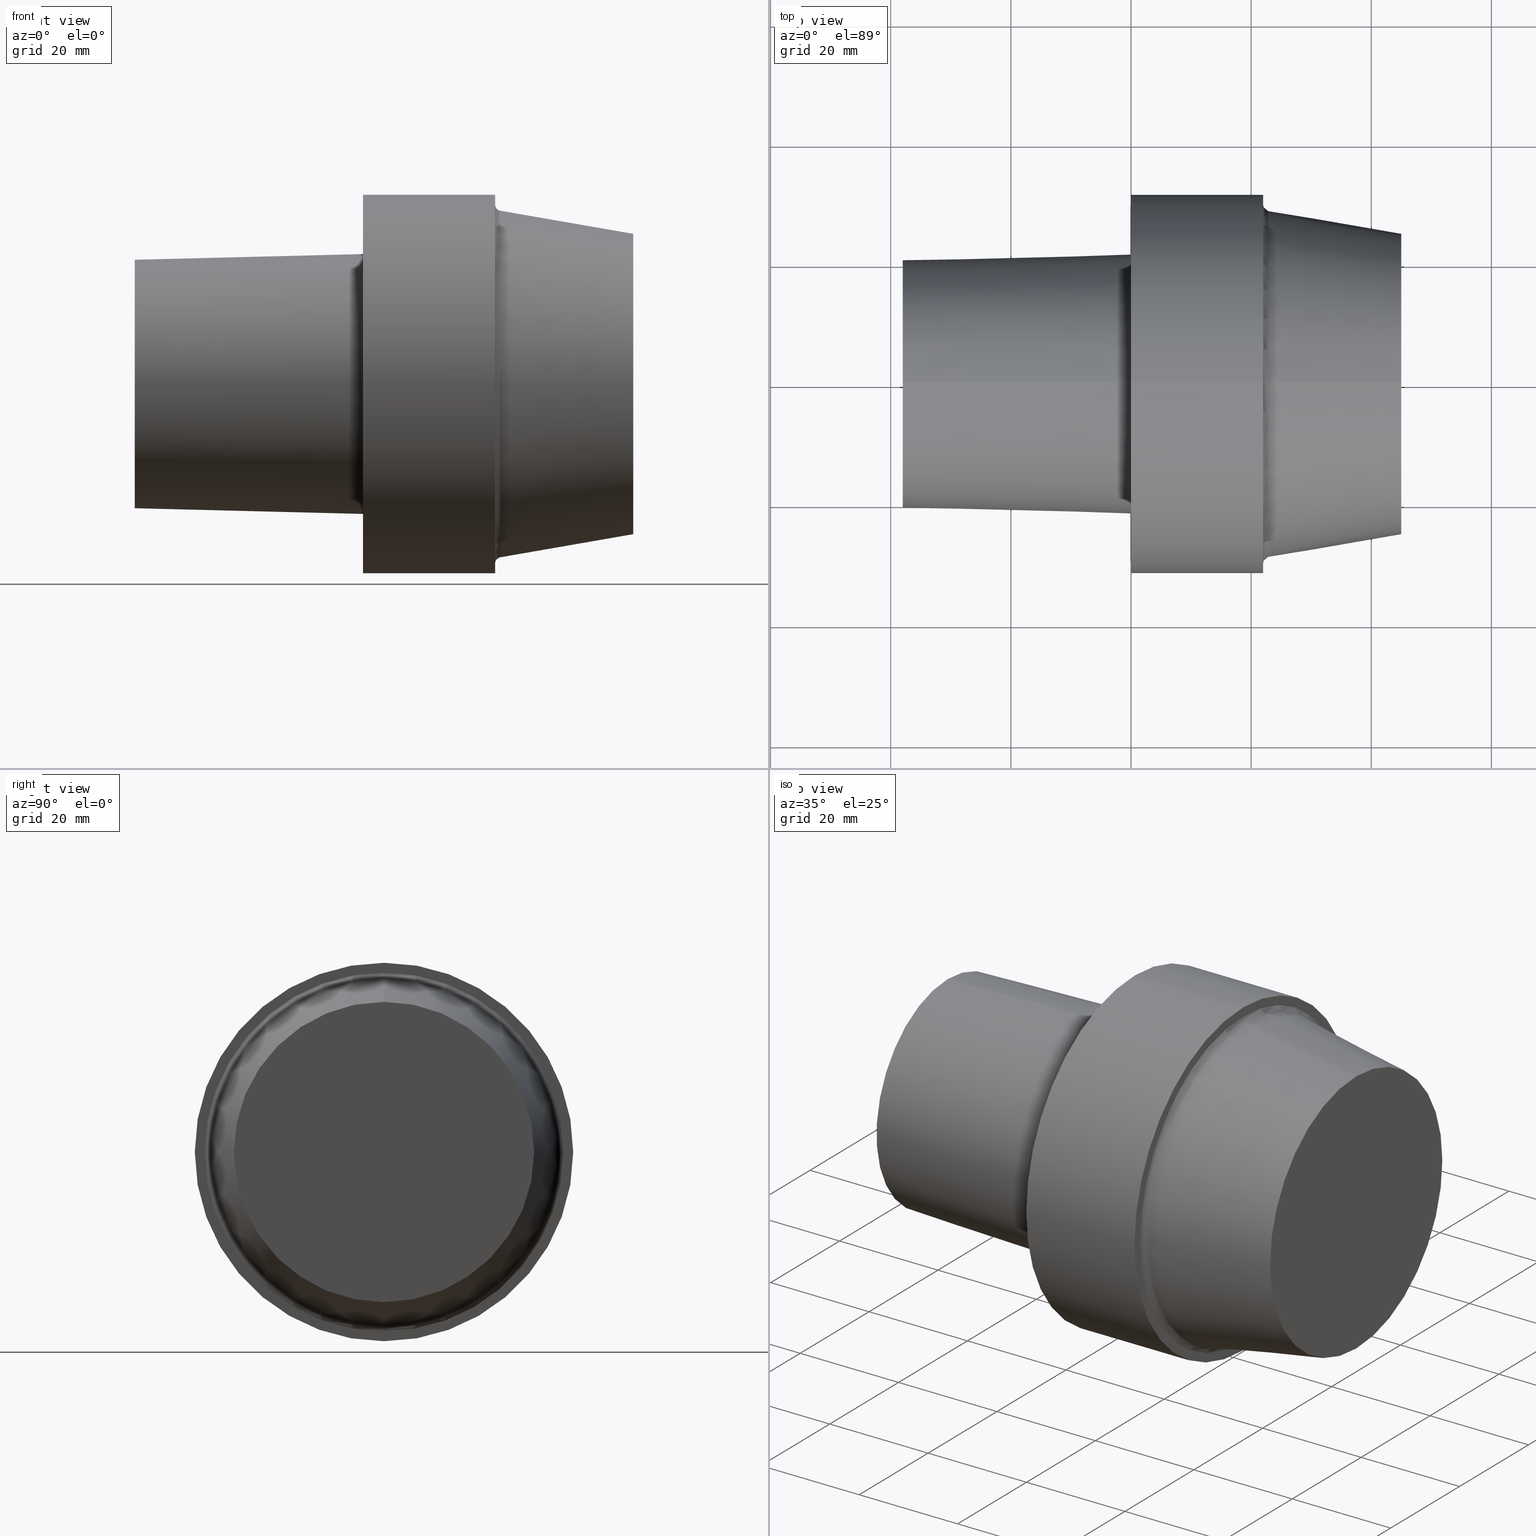
[diagram: canonical four-view strip — front | top / right | iso, engineering-drawing reading convention]
A machine part, canonical four-view strip (front | top / right | iso — engineering-drawing reading convention). The complete STEP part file that produces these views, byte-faithful:
ISO-10303-21;
HEADER;
FILE_DESCRIPTION (( 'STEP AP203' ),
    '1' );
FILE_NAME ('C6-S50-45.stp',
    '2022-03-11T15:33:12',
    ( '' ),
    ( '' ),
    'SwSTEP 2.0',
    'SolidWorks 2021',
    '' );
FILE_SCHEMA (( 'CONFIG_CONTROL_DESIGN' ));
ENDSEC;

DATA;
#1 = PERSON_AND_ORGANIZATION_ROLE ( 'creator' ) ;
#2 = ADVANCED_BREP_SHAPE_REPRESENTATION ( 'C6-S50-45', ( #100, #343 ), #29 ) ;
#3 = FACE_BOUND ( 'NONE', #12, .T. ) ;
#4 = ADVANCED_FACE ( 'NONE', ( #380 ), #214, .T. ) ;
#5 = AXIS2_PLACEMENT_3D ( 'NONE', #215, #372, #193 ) ;
#6 = TOROIDAL_SURFACE ( 'NONE', #159, 29.84109714520806378, 0.9999999989799999156 ) ;
#7 = DIRECTION ( 'NONE',  ( 1.000000000000000000, 0.000000000000000000, 0.000000000000000000 ) ) ;
#8 = ORIENTED_EDGE ( 'NONE', *, *, #33, .T. ) ;
#9 = DIRECTION ( 'NONE',  ( -1.000000000000000000, 0.000000000000000000, 0.000000000000000000 ) ) ;
#10 = EDGE_LOOP ( 'NONE', ( #102, #291, #168, #47 ) ) ;
#11 = EDGE_CURVE ( 'NONE', #307, #277, #263, .T. ) ;
#12 = EDGE_LOOP ( 'NONE', ( #79, #8 ) ) ;
#13 = CLOSED_SHELL ( 'NONE', ( #357, #4, #158, #113, #118, #91, #340, #165, #133, #235, #245, #186 ) ) ;
#14 = TOROIDAL_SURFACE ( 'NONE', #237, 29.84109714520806378, 0.9999999989799999156 ) ;
#15 = MECHANICAL_CONTEXT ( 'NONE', #89, 'mechanical' ) ;
#16 = AXIS2_PLACEMENT_3D ( 'NONE', #217, #7, #308 ) ;
#17 = DIRECTION ( 'NONE',  ( 0.000000000000000000, 0.000000000000000000, 1.000000000000000000 ) ) ;
#18 = APPROVAL_PERSON_ORGANIZATION ( #296, #328, #84 ) ;
#19 = DIRECTION ( 'NONE',  ( 0.000000000000000000, 0.000000000000000000, -1.000000000000000000 ) ) ;
#20 = CARTESIAN_POINT ( 'NONE',  ( 0.000000000000000000, 0.000000000000000000, 0.000000000000000000 ) ) ;
#21 = DIRECTION ( 'NONE',  ( 0.9996875915253454759, 0.000000000000000000, -0.02499438637482059161 ) ) ;
#22 = APPLICATION_PROTOCOL_DEFINITION ( 'international standard', 'config_control_design', 1994, #89 ) ;
#23 = LINE ( 'NONE', #141, #312 ) ;
#24 = CALENDAR_DATE ( 2022, 11, 3 ) ;
#25 = EDGE_CURVE ( 'NONE', #239, #387, #23, .T. ) ;
#26 = DIRECTION ( 'NONE',  ( 0.000000000000000000, 1.000000000000000000, -1.224646799147350002E-16 ) ) ;
#27 = CIRCLE ( 'NONE', #66, 31.49999996787000001 ) ;
#28 = PERSON_AND_ORGANIZATION_ROLE ( 'design_supplier' ) ;
#29 =( GEOMETRIC_REPRESENTATION_CONTEXT ( 3 ) GLOBAL_UNCERTAINTY_ASSIGNED_CONTEXT ( ( #289 ) ) GLOBAL_UNIT_ASSIGNED_CONTEXT ( ( #198, #284, #171 ) ) REPRESENTATION_CONTEXT ( 'NONE', 'WORKASPACE' ) );
#30 = EDGE_CURVE ( 'NONE', #42, #107, #145, .T. ) ;
#31 = CALENDAR_DATE ( 2022, 11, 3 ) ;
#32 = FACE_OUTER_BOUND ( 'NONE', #222, .T. ) ;
#33 = EDGE_CURVE ( 'NONE', #40, #277, #94, .T. ) ;
#34 = DIRECTION ( 'NONE',  ( 1.000000000000000000, 0.000000000000000000, 0.000000000000000000 ) ) ;
#35 = VECTOR ( 'NONE', #345, 1000.000000000000114 ) ;
#36 = FACE_OUTER_BOUND ( 'NONE', #367, .T. ) ;
#37 = EDGE_CURVE ( 'NONE', #107, #374, #120, .T. ) ;
#38 = ORIENTED_EDGE ( 'NONE', *, *, #151, .T. ) ;
#39 = FACE_OUTER_BOUND ( 'NONE', #10, .T. ) ;
#40 = VERTEX_POINT ( 'NONE', #295 ) ;
#41 = CARTESIAN_POINT ( 'NONE',  ( 0.000000000000000000, 0.000000000000000000, 0.000000000000000000 ) ) ;
#42 = VERTEX_POINT ( 'NONE', #320 ) ;
#43 = CIRCLE ( 'NONE', #360, 29.84109714956208137 ) ;
#44 = DIRECTION ( 'NONE',  ( 0.000000000000000000, -1.000000000000000000, 0.000000000000000000 ) ) ;
#45 = CARTESIAN_POINT ( 'NONE',  ( 21.99999997755999814, 0.000000000000000000, 0.000000000000000000 ) ) ;
#46 = DIRECTION ( 'NONE',  ( 1.000000000000000000, 0.000000000000000000, 0.000000000000000000 ) ) ;
#47 = ORIENTED_EDGE ( 'NONE', *, *, #265, .F. ) ;
#48 = DIRECTION ( 'NONE',  ( 0.000000000000000000, 0.000000000000000000, -1.000000000000000000 ) ) ;
#49 = AXIS2_PLACEMENT_3D ( 'NONE', #311, #46, #204 ) ;
#50 = CC_DESIGN_PERSON_AND_ORGANIZATION_ASSIGNMENT ( #185, #1, ( #258 ) ) ;
#51 = CARTESIAN_POINT ( 'NONE',  ( -37.99999996124000035, 0.000000000000000000, 0.000000000000000000 ) ) ;
#52 = CARTESIAN_POINT ( 'NONE',  ( 21.99999997755999814, 0.000000000000000000, 0.000000000000000000 ) ) ;
#53 = COORDINATED_UNIVERSAL_TIME_OFFSET ( 6, 0, .BEHIND. ) ;
#54 = ORIENTED_EDGE ( 'NONE', *, *, #33, .F. ) ;
#55 = APPROVAL_STATUS ( 'not_yet_approved' ) ;
#56 = AXIS2_PLACEMENT_3D ( 'NONE', #208, #26, #383 ) ;
#57 = PERSON_AND_ORGANIZATION ( #68, #105 ) ;
#58 = EDGE_CURVE ( 'NONE', #374, #107, #43, .T. ) ;
#59 = APPROVAL_ROLE ( '' ) ;
#60 = DATE_TIME_ROLE ( 'classification_date' ) ;
#61 = EDGE_CURVE ( 'NONE', #387, #136, #157, .T. ) ;
#62 = DIRECTION ( 'NONE',  ( 1.000000000000000000, 0.000000000000000000, 0.000000000000000000 ) ) ;
#63 = LINE ( 'NONE', #188, #153 ) ;
#64 = ORIENTED_EDGE ( 'NONE', *, *, #299, .T. ) ;
#65 = DIRECTION ( 'NONE',  ( 0.000000000000000000, 0.000000000000000000, -1.000000000000000000 ) ) ;
#66 = AXIS2_PLACEMENT_3D ( 'NONE', #41, #249, #65 ) ;
#67 = CARTESIAN_POINT ( 'NONE',  ( 21.99999997755999814, 0.000000000000000000, -31.49999996787000001 ) ) ;
#68 = PERSON ( 'UNSPECIFIED', 'UNSPECIFIED', 'UNSPECIFIED', ('UNSPECIFIED'), ('UNSPECIFIED'), ('UNSPECIFIED') ) ;
#69 = FACE_OUTER_BOUND ( 'NONE', #76, .T. ) ;
#70 = APPROVAL_PERSON_ORGANIZATION ( #241, #194, #59 ) ;
#71 = VERTEX_POINT ( 'NONE', #210 ) ;
#72 = CARTESIAN_POINT ( 'NONE',  ( 0.000000000000000000, 2.648985971153096932E-15, 21.63061196907898065 ) ) ;
#73 = CC_DESIGN_DATE_AND_TIME_ASSIGNMENT ( #181, #60, ( #359 ) ) ;
#74 = CARTESIAN_POINT ( 'NONE',  ( 44.99999995409999798, 0.000000000000000000, 24.99999997449999967 ) ) ;
#75 = DIRECTION ( 'NONE',  ( 0.000000000000000000, 0.000000000000000000, -1.000000000000000000 ) ) ;
#76 = EDGE_LOOP ( 'NONE', ( #195, #162 ) ) ;
#77 = CARTESIAN_POINT ( 'NONE',  ( 44.99999995409999798, 0.000000000000000000, 0.000000000000000000 ) ) ;
#78 = EDGE_CURVE ( 'NONE', #144, #112, #378, .T. ) ;
#79 = ORIENTED_EDGE ( 'NONE', *, *, #310, .T. ) ;
#80 = CARTESIAN_POINT ( 'NONE',  ( 0.000000000000000000, 0.000000000000000000, 0.000000000000000000 ) ) ;
#81 = ORIENTED_EDGE ( 'NONE', *, *, #305, .T. ) ;
#82 = SECURITY_CLASSIFICATION_LEVEL ( 'unclassified' ) ;
#83 = VERTEX_POINT ( 'NONE', #236 ) ;
#84 = APPROVAL_ROLE ( '' ) ;
#85 = DATE_AND_TIME ( #31, #324 ) ;
#86 = CC_DESIGN_PERSON_AND_ORGANIZATION_ASSIGNMENT ( #209, #150, ( #359 ) ) ;
#87 = CONICAL_SURFACE ( 'NONE', #140, 24.99999997449999967, 0.1721908144848698641 ) ;
#88 = PERSON_AND_ORGANIZATION_ROLE ( 'creator' ) ;
#89 = APPLICATION_CONTEXT ( 'configuration controlled 3d designs of mechanical parts and assemblies' ) ;
#90 = CALENDAR_DATE ( 2022, 11, 3 ) ;
#91 = ADVANCED_FACE ( 'NONE', ( #253 ), #14, .F. ) ;
#92 = DIRECTION ( 'NONE',  ( 1.000000000000000000, 0.000000000000000000, 0.000000000000000000 ) ) ;
#93 = AXIS2_PLACEMENT_3D ( 'NONE', #317, #201, #315 ) ;
#94 = CIRCLE ( 'NONE', #110, 21.63061196907898065 ) ;
#95 = FACE_OUTER_BOUND ( 'NONE', #134, .T. ) ;
#96 = CARTESIAN_POINT ( 'NONE',  ( 21.99999997755999814, 3.654480410459031947E-15, 29.84109714738507435 ) ) ;
#97 = ORIENTED_EDGE ( 'NONE', *, *, #207, .T. ) ;
#98 = CARTESIAN_POINT ( 'NONE',  ( 44.99999995409999798, 0.000000000000000000, 0.000000000000000000 ) ) ;
#99 = CC_DESIGN_PERSON_AND_ORGANIZATION_ASSIGNMENT ( #298, #28, ( #258 ) ) ;
#100 = MANIFOLD_SOLID_BREP ( 'Scale1', #13 ) ;
#101 = AXIS2_PLACEMENT_3D ( 'NONE', #336, #247, #126 ) ;
#102 = ORIENTED_EDGE ( 'NONE', *, *, #349, .F. ) ;
#103 = CARTESIAN_POINT ( 'NONE',  ( 0.000000000000000000, 3.857637413379370248E-15, 31.49999996787000001 ) ) ;
#104 = ORIENTED_EDGE ( 'NONE', *, *, #363, .T. ) ;
#105 = ORGANIZATION ( 'UNSPECIFIED', 'UNSPECIFIED', '' ) ;
#106 = EDGE_CURVE ( 'NONE', #83, #136, #63, .T. ) ;
#107 = VERTEX_POINT ( 'NONE', #96 ) ;
#108 = DIRECTION ( 'NONE',  ( 0.000000000000000000, 0.000000000000000000, -1.000000000000000000 ) ) ;
#109 = DIRECTION ( 'NONE',  ( 1.000000000000000000, 0.000000000000000000, 0.000000000000000000 ) ) ;
#110 = AXIS2_PLACEMENT_3D ( 'NONE', #114, #116, #355 ) ;
#111 = CARTESIAN_POINT ( 'NONE',  ( -37.99999996124000035, 0.000000000000000000, -20.68052847366897140 ) ) ;
#112 = VERTEX_POINT ( 'NONE', #128 ) ;
#113 = ADVANCED_FACE ( 'NONE', ( #337 ), #218, .T. ) ;
#114 = CARTESIAN_POINT ( 'NONE',  ( 0.000000000000000000, 0.000000000000000000, 0.000000000000000000 ) ) ;
#115 = ORIENTED_EDGE ( 'NONE', *, *, #310, .F. ) ;
#116 = DIRECTION ( 'NONE',  ( 1.000000000000000000, 0.000000000000000000, 0.000000000000000000 ) ) ;
#117 = COORDINATED_UNIVERSAL_TIME_OFFSET ( 6, 0, .BEHIND. ) ;
#118 = ADVANCED_FACE ( 'NONE', ( #163, #32 ), #370, .T. ) ;
#119 = CIRCLE ( 'NONE', #121, 21.63061196907898065 ) ;
#120 = CIRCLE ( 'NONE', #353, 29.84109714956208137 ) ;
#121 = AXIS2_PLACEMENT_3D ( 'NONE', #20, #347, #75 ) ;
#122 = APPROVAL ( #356, 'UNSPECIFIED' ) ;
#123 = CYLINDRICAL_SURFACE ( 'NONE', #354, 31.49999996787000001 ) ;
#124 = CARTESIAN_POINT ( 'NONE',  ( 0.000000000000000000, 31.49999996787000001, 0.000000000000000000 ) ) ;
#125 = ORIENTED_EDGE ( 'NONE', *, *, #61, .T. ) ;
#126 = DIRECTION ( 'NONE',  ( 0.000000000000000000, 1.000000000000000000, 0.000000000000000000 ) ) ;
#127 = ORIENTED_EDGE ( 'NONE', *, *, #58, .F. ) ;
#128 = CARTESIAN_POINT ( 'NONE',  ( 44.99999995409999798, 3.297721881378803362E-15, -24.99999997449999967 ) ) ;
#129 = ORIENTED_EDGE ( 'NONE', *, *, #299, .F. ) ;
#130 = CARTESIAN_POINT ( 'NONE',  ( 22.99999997654000339, 0.000000000000000000, 0.000000000000000000 ) ) ;
#131 = ORIENTED_EDGE ( 'NONE', *, *, #30, .F. ) ;
#132 = LINE ( 'NONE', #72, #35 ) ;
#133 = ADVANCED_FACE ( 'NONE', ( #36 ), #146, .T. ) ;
#134 = EDGE_LOOP ( 'NONE', ( #266, #303, #115, #279 ) ) ;
#135 = CARTESIAN_POINT ( 'NONE',  ( -37.99999996124000035, 2.590810135574270981E-15, 20.68052847366897140 ) ) ;
#136 = VERTEX_POINT ( 'NONE', #67 ) ;
#137 = DIRECTION ( 'NONE',  ( 1.000000000000000000, 0.000000000000000000, 0.000000000000000000 ) ) ;
#138 = ORIENTED_EDGE ( 'NONE', *, *, #151, .F. ) ;
#139 = AXIS2_PLACEMENT_3D ( 'NONE', #124, #244, #365 ) ;
#140 = AXIS2_PLACEMENT_3D ( 'NONE', #77, #177, #232 ) ;
#141 = CARTESIAN_POINT ( 'NONE',  ( 44.99999995409999798, 3.857637413379370248E-15, 31.49999996787000001 ) ) ;
#142 = DIRECTION ( 'NONE',  ( 0.000000000000000000, 0.000000000000000000, -1.000000000000000000 ) ) ;
#143 = DATE_AND_TIME ( #24, #271 ) ;
#144 = VERTEX_POINT ( 'NONE', #251 ) ;
#145 = CIRCLE ( 'NONE', #56, 0.9999999989800008038 ) ;
#146 = CONICAL_SURFACE ( 'NONE', #248, 24.99999997449999967, 0.1721908144848698641 ) ;
#147 = EDGE_CURVE ( 'NONE', #239, #83, #199, .T. ) ;
#148 = CALENDAR_DATE ( 2022, 11, 3 ) ;
#149 = LOCAL_TIME ( 9, 33, 12.00000000000000000, #117 ) ;
#150 = PERSON_AND_ORGANIZATION_ROLE ( 'classification_officer' ) ;
#151 = EDGE_CURVE ( 'NONE', #136, #387, #297, .T. ) ;
#152 = APPROVAL_STATUS ( 'not_yet_approved' ) ;
#153 = VECTOR ( 'NONE', #92, 1000.000000000000000 ) ;
#154 = AXIS2_PLACEMENT_3D ( 'NONE', #227, #377, #202 ) ;
#155 = DIRECTION ( 'NONE',  ( 0.000000000000000000, 0.000000000000000000, 1.000000000000000000 ) ) ;
#156 = FACE_OUTER_BOUND ( 'NONE', #283, .T. ) ;
#157 = CIRCLE ( 'NONE', #187, 31.49999996787000001 ) ;
#158 = ADVANCED_FACE ( 'NONE', ( #3, #69 ), #334, .T. ) ;
#159 = AXIS2_PLACEMENT_3D ( 'NONE', #130, #223, #196 ) ;
#160 = ORIENTED_EDGE ( 'NONE', *, *, #78, .F. ) ;
#161 = DIRECTION ( 'NONE',  ( 0.000000000000000000, 0.000000000000000000, -1.000000000000000000 ) ) ;
#162 = ORIENTED_EDGE ( 'NONE', *, *, #147, .F. ) ;
#163 = FACE_BOUND ( 'NONE', #192, .T. ) ;
#164 = ORIENTED_EDGE ( 'NONE', *, *, #349, .T. ) ;
#165 = ADVANCED_FACE ( 'NONE', ( #156 ), #366, .T. ) ;
#166 = FACE_OUTER_BOUND ( 'NONE', #191, .T. ) ;
#167 = AXIS2_PLACEMENT_3D ( 'NONE', #233, #348, #346 ) ;
#168 = ORIENTED_EDGE ( 'NONE', *, *, #37, .T. ) ;
#169 = FACE_OUTER_BOUND ( 'NONE', #274, .T. ) ;
#170 = ORIENTED_EDGE ( 'NONE', *, *, #381, .T. ) ;
#171 =( NAMED_UNIT ( * ) SI_UNIT ( $, .STERADIAN. ) SOLID_ANGLE_UNIT ( ) );
#172 = CC_DESIGN_SECURITY_CLASSIFICATION ( #359, ( #258 ) ) ;
#173 = DIRECTION ( 'NONE',  ( 0.000000000000000000, 0.000000000000000000, -1.000000000000000000 ) ) ;
#174 = AXIS2_PLACEMENT_3D ( 'NONE', #230, #137, #48 ) ;
#175 = ORIENTED_EDGE ( 'NONE', *, *, #386, .F. ) ;
#176 = CIRCLE ( 'NONE', #174, 28.85588539056699631 ) ;
#177 = DIRECTION ( 'NONE',  ( -1.000000000000000000, 0.000000000000000000, 0.000000000000000000 ) ) ;
#178 = CC_DESIGN_APPROVAL ( #194, ( #182 ) ) ;
#179 = DIRECTION ( 'NONE',  ( 0.000000000000000000, 0.000000000000000000, -1.000000000000000000 ) ) ;
#180 = APPROVAL_PERSON_ORGANIZATION ( #57, #122, #292 ) ;
#181 = DATE_AND_TIME ( #385, #189 ) ;
#182 = PRODUCT_DEFINITION ( 'UNKNOWN', '', #258, #352 ) ;
#183 = APPROVAL_DATE_TIME ( #243, #194 ) ;
#184 = CONICAL_SURFACE ( 'NONE', #16, 21.63061196907898065, 0.02499698951949481940 ) ;
#185 = PERSON_AND_ORGANIZATION ( #68, #105 ) ;
#186 = ADVANCED_FACE ( 'NONE', ( #95 ), #184, .T. ) ;
#187 = AXIS2_PLACEMENT_3D ( 'NONE', #268, #384, #173 ) ;
#188 = CARTESIAN_POINT ( 'NONE',  ( 44.99999995409999798, 0.000000000000000000, -31.49999996787000001 ) ) ;
#189 = LOCAL_TIME ( 9, 33, 12.00000000000000000, #53 ) ;
#190 = CARTESIAN_POINT ( 'NONE',  ( 0.000000000000000000, 0.000000000000000000, 0.000000000000000000 ) ) ;
#191 = EDGE_LOOP ( 'NONE', ( #97, #224, #138, #197 ) ) ;
#192 = EDGE_LOOP ( 'NONE', ( #127, #369 ) ) ;
#193 = DIRECTION ( 'NONE',  ( 0.000000000000000000, 0.000000000000000000, -1.000000000000000000 ) ) ;
#194 = APPROVAL ( #55, 'UNSPECIFIED' ) ;
#195 = ORIENTED_EDGE ( 'NONE', *, *, #207, .F. ) ;
#196 = DIRECTION ( 'NONE',  ( 0.000000000000000000, 0.000000000000000000, -1.000000000000000000 ) ) ;
#197 = ORIENTED_EDGE ( 'NONE', *, *, #106, .F. ) ;
#198 =( LENGTH_UNIT ( ) NAMED_UNIT ( * ) SI_UNIT ( .MILLI., .METRE. ) );
#199 = CIRCLE ( 'NONE', #246, 31.49999996787000001 ) ;
#200 = CARTESIAN_POINT ( 'NONE',  ( 22.82865880671476688, 0.000000000000000000, 0.000000000000000000 ) ) ;
#201 = DIRECTION ( 'NONE',  ( 1.000000000000000000, 0.000000000000000000, 0.000000000000000000 ) ) ;
#202 = DIRECTION ( 'NONE',  ( 0.000000000000000000, 0.000000000000000000, -1.000000000000000000 ) ) ;
#203 = ORIENTED_EDGE ( 'NONE', *, *, #147, .T. ) ;
#204 = DIRECTION ( 'NONE',  ( 0.000000000000000000, 0.000000000000000000, -1.000000000000000000 ) ) ;
#205 = CARTESIAN_POINT ( 'NONE',  ( 0.000000000000000000, 0.000000000000000000, -21.63061196907898065 ) ) ;
#206 = DIRECTION ( 'NONE',  ( 1.000000000000000000, 0.000000000000000000, 0.000000000000000000 ) ) ;
#207 = EDGE_CURVE ( 'NONE', #83, #239, #27, .T. ) ;
#208 = CARTESIAN_POINT ( 'NONE',  ( 22.99999997654000339, 3.654480410192425360E-15, 29.84109714520806378 ) ) ;
#209 = PERSON_AND_ORGANIZATION ( #68, #105 ) ;
#210 = CARTESIAN_POINT ( 'NONE',  ( 22.82865880671476688, 3.533826768012075119E-15, -28.85588539056699631 ) ) ;
#211 = AXIS2_PLACEMENT_3D ( 'NONE', #275, #301, #280 ) ;
#212 = AXIS2_PLACEMENT_3D ( 'NONE', #259, #44, #108 ) ;
#213 = APPROVAL_DATE_TIME ( #85, #122 ) ;
#214 = CONICAL_SURFACE ( 'NONE', #93, 21.63061196907898065, 0.02499698951949481940 ) ;
#215 = CARTESIAN_POINT ( 'NONE',  ( 21.99999997755999814, 0.000000000000000000, 0.000000000000000000 ) ) ;
#216 = CC_DESIGN_DATE_AND_TIME_ASSIGNMENT ( #143, #362, ( #182 ) ) ;
#217 = CARTESIAN_POINT ( 'NONE',  ( 0.000000000000000000, 0.000000000000000000, 0.000000000000000000 ) ) ;
#218 = CYLINDRICAL_SURFACE ( 'NONE', #281, 31.49999996787000001 ) ;
#219 = CARTESIAN_POINT ( 'NONE',  ( 44.99999995409999798, 3.061616994745535943E-15, -24.99999997449999967 ) ) ;
#220 = EDGE_CURVE ( 'NONE', #112, #71, #304, .T. ) ;
#221 = CIRCLE ( 'NONE', #49, 20.68052847366897140 ) ;
#222 = EDGE_LOOP ( 'NONE', ( #38, #125 ) ) ;
#223 = DIRECTION ( 'NONE',  ( 1.000000000000000000, 0.000000000000000000, 0.000000000000000000 ) ) ;
#224 = ORIENTED_EDGE ( 'NONE', *, *, #25, .T. ) ;
#225 = FACE_OUTER_BOUND ( 'NONE', #371, .T. ) ;
#226 = ORIENTED_EDGE ( 'NONE', *, *, #363, .F. ) ;
#227 = CARTESIAN_POINT ( 'NONE',  ( -37.99999996124000035, 0.000000000000000000, 0.000000000000000000 ) ) ;
#228 = DIRECTION ( 'NONE',  ( 1.000000000000000000, 0.000000000000000000, 0.000000000000000000 ) ) ;
#229 = PRODUCT_RELATED_PRODUCT_CATEGORY ( 'detail', '', ( #290 ) ) ;
#230 = CARTESIAN_POINT ( 'NONE',  ( 22.82865880671476688, 0.000000000000000000, 0.000000000000000000 ) ) ;
#231 = DIRECTION ( 'NONE',  ( 1.000000000000000000, 0.000000000000000000, 0.000000000000000000 ) ) ;
#232 = DIRECTION ( 'NONE',  ( 0.000000000000000000, 0.000000000000000000, 1.000000000000000000 ) ) ;
#233 = CARTESIAN_POINT ( 'NONE',  ( 44.99999995409999798, 0.000000000000000000, 0.000000000000000000 ) ) ;
#234 = APPLICATION_CONTEXT ( 'configuration controlled 3d designs of mechanical parts and assemblies' ) ;
#235 = ADVANCED_FACE ( 'NONE', ( #39 ), #6, .F. ) ;
#236 = CARTESIAN_POINT ( 'NONE',  ( 0.000000000000000000, 0.000000000000000000, -31.49999996787000001 ) ) ;
#237 = AXIS2_PLACEMENT_3D ( 'NONE', #339, #272, #368 ) ;
#238 = CIRCLE ( 'NONE', #300, 24.99999997449999967 ) ;
#239 = VERTEX_POINT ( 'NONE', #103 ) ;
#240 = DATE_AND_TIME ( #148, #149 ) ;
#241 = PERSON_AND_ORGANIZATION ( #68, #105 ) ;
#242 = AXIS2_PLACEMENT_3D ( 'NONE', #200, #351, #19 ) ;
#243 = DATE_AND_TIME ( #90, #293 ) ;
#244 = DIRECTION ( 'NONE',  ( -1.000000000000000000, 0.000000000000000000, 0.000000000000000000 ) ) ;
#245 = ADVANCED_FACE ( 'NONE', ( #166 ), #123, .T. ) ;
#246 = AXIS2_PLACEMENT_3D ( 'NONE', #190, #34, #278 ) ;
#247 = DIRECTION ( 'NONE',  ( 1.000000000000000000, 0.000000000000000000, 0.000000000000000000 ) ) ;
#248 = AXIS2_PLACEMENT_3D ( 'NONE', #98, #9, #155 ) ;
#249 = DIRECTION ( 'NONE',  ( 1.000000000000000000, 0.000000000000000000, 0.000000000000000000 ) ) ;
#250 = ORIENTED_EDGE ( 'NONE', *, *, #381, .F. ) ;
#251 = CARTESIAN_POINT ( 'NONE',  ( 44.99999995409999798, 0.000000000000000000, 24.99999997449999967 ) ) ;
#252 = ORIENTED_EDGE ( 'NONE', *, *, #61, .F. ) ;
#253 = FACE_OUTER_BOUND ( 'NONE', #313, .T. ) ;
#254 = ORIENTED_EDGE ( 'NONE', *, *, #78, .T. ) ;
#255 = DIRECTION ( 'NONE',  ( -0.9852117548261971613, 0.000000000000000000, 0.1713411747137419949 ) ) ;
#256 = ORIENTED_EDGE ( 'NONE', *, *, #106, .T. ) ;
#257 = DIRECTION ( 'NONE',  ( 0.000000000000000000, 0.000000000000000000, -1.000000000000000000 ) ) ;
#258 = PRODUCT_DEFINITION_FORMATION_WITH_SPECIFIED_SOURCE ( 'ANY', '', #290, .NOT_KNOWN. ) ;
#259 = CARTESIAN_POINT ( 'NONE',  ( 22.99999997654000339, 0.000000000000000000, -29.84109714520806378 ) ) ;
#260 = VECTOR ( 'NONE', #255, 1000.000000000000114 ) ;
#261 = ORIENTED_EDGE ( 'NONE', *, *, #220, .F. ) ;
#262 = CARTESIAN_POINT ( 'NONE',  ( 0.000000000000000000, 0.000000000000000000, -21.63061196907898065 ) ) ;
#263 = LINE ( 'NONE', #205, #332 ) ;
#264 = LINE ( 'NONE', #74, #260 ) ;
#265 = EDGE_CURVE ( 'NONE', #71, #374, #379, .T. ) ;
#266 = ORIENTED_EDGE ( 'NONE', *, *, #386, .T. ) ;
#267 = COORDINATED_UNIVERSAL_TIME_OFFSET ( 6, 0, .BEHIND. ) ;
#268 = CARTESIAN_POINT ( 'NONE',  ( 21.99999997755999814, 0.000000000000000000, 0.000000000000000000 ) ) ;
#269 = APPROVAL_DATE_TIME ( #240, #328 ) ;
#270 = PERSON_AND_ORGANIZATION ( #68, #105 ) ;
#271 = LOCAL_TIME ( 9, 33, 12.00000000000000000, #358 ) ;
#272 = DIRECTION ( 'NONE',  ( 1.000000000000000000, 0.000000000000000000, 0.000000000000000000 ) ) ;
#273 = CARTESIAN_POINT ( 'NONE',  ( 44.99999995409999798, 0.000000000000000000, 0.000000000000000000 ) ) ;
#274 = EDGE_LOOP ( 'NONE', ( #261, #160, #64, #164 ) ) ;
#275 = CARTESIAN_POINT ( 'NONE',  ( 21.99999997755999814, 31.49999996787000001, 0.000000000000000000 ) ) ;
#276 = EDGE_CURVE ( 'NONE', #322, #40, #132, .T. ) ;
#277 = VERTEX_POINT ( 'NONE', #262 ) ;
#278 = DIRECTION ( 'NONE',  ( 0.000000000000000000, 0.000000000000000000, -1.000000000000000000 ) ) ;
#279 = ORIENTED_EDGE ( 'NONE', *, *, #11, .F. ) ;
#280 = DIRECTION ( 'NONE',  ( 0.000000000000000000, 1.000000000000000000, 0.000000000000000000 ) ) ;
#281 = AXIS2_PLACEMENT_3D ( 'NONE', #273, #302, #161 ) ;
#282 = VECTOR ( 'NONE', #306, 1000.000000000000114 ) ;
#283 = EDGE_LOOP ( 'NONE', ( #254, #81 ) ) ;
#284 =( NAMED_UNIT ( * ) PLANE_ANGLE_UNIT ( ) SI_UNIT ( $, .RADIAN. ) );
#285 = CC_DESIGN_PERSON_AND_ORGANIZATION_ASSIGNMENT ( #270, #88, ( #182 ) ) ;
#286 = ORIENTED_EDGE ( 'NONE', *, *, #276, .F. ) ;
#287 = DIRECTION ( 'NONE',  ( 0.000000000000000000, 0.000000000000000000, -1.000000000000000000 ) ) ;
#288 = ORIENTED_EDGE ( 'NONE', *, *, #265, .T. ) ;
#289 = UNCERTAINTY_MEASURE_WITH_UNIT (LENGTH_MEASURE( 1.000000000000000082E-05 ), #198, 'distance_accuracy_value', 'NONE');
#290 = PRODUCT ( 'C6-S50-45', 'C6-S50-45', '', ( #15 ) ) ;
#291 = ORIENTED_EDGE ( 'NONE', *, *, #30, .T. ) ;
#292 = APPROVAL_ROLE ( '' ) ;
#293 = LOCAL_TIME ( 9, 33, 12.00000000000000000, #323 ) ;
#294 = PRODUCT_DEFINITION_SHAPE ( 'NONE', 'NONE',  #182 ) ;
#295 = CARTESIAN_POINT ( 'NONE',  ( 0.000000000000000000, 2.648985971153096932E-15, 21.63061196907898065 ) ) ;
#296 = PERSON_AND_ORGANIZATION ( #68, #105 ) ;
#297 = CIRCLE ( 'NONE', #5, 31.49999996787000001 ) ;
#298 = PERSON_AND_ORGANIZATION ( #68, #105 ) ;
#299 = EDGE_CURVE ( 'NONE', #144, #42, #264, .T. ) ;
#300 = AXIS2_PLACEMENT_3D ( 'NONE', #382, #321, #257 ) ;
#301 = DIRECTION ( 'NONE',  ( 1.000000000000000000, 0.000000000000000000, 0.000000000000000000 ) ) ;
#302 = DIRECTION ( 'NONE',  ( 1.000000000000000000, 0.000000000000000000, 0.000000000000000000 ) ) ;
#303 = ORIENTED_EDGE ( 'NONE', *, *, #276, .T. ) ;
#304 = LINE ( 'NONE', #219, #282 ) ;
#305 = EDGE_CURVE ( 'NONE', #112, #144, #238, .T. ) ;
#306 = DIRECTION ( 'NONE',  ( -0.9852117548261971613, 2.098324211753310319E-17, -0.1713411747137419949 ) ) ;
#307 = VERTEX_POINT ( 'NONE', #111 ) ;
#308 = DIRECTION ( 'NONE',  ( 0.000000000000000000, 0.000000000000000000, -1.000000000000000000 ) ) ;
#309 = EDGE_LOOP ( 'NONE', ( #326, #203, #256, #252 ) ) ;
#310 = EDGE_CURVE ( 'NONE', #277, #40, #119, .T. ) ;
#311 = CARTESIAN_POINT ( 'NONE',  ( -37.99999996124000035, 0.000000000000000000, 0.000000000000000000 ) ) ;
#312 = VECTOR ( 'NONE', #109, 1000.000000000000000 ) ;
#313 = EDGE_LOOP ( 'NONE', ( #131, #226, #288, #344 ) ) ;
#314 = DIRECTION ( 'NONE',  ( -1.000000000000000000, 0.000000000000000000, 0.000000000000000000 ) ) ;
#315 = DIRECTION ( 'NONE',  ( 0.000000000000000000, 0.000000000000000000, -1.000000000000000000 ) ) ;
#316 = CARTESIAN_POINT ( 'NONE',  ( 21.99999997755999814, 3.857637413379370248E-15, 31.49999996787000001 ) ) ;
#317 = CARTESIAN_POINT ( 'NONE',  ( 0.000000000000000000, 0.000000000000000000, 0.000000000000000000 ) ) ;
#318 = PLANE ( 'NONE',  #338 ) ;
#319 = CIRCLE ( 'NONE', #154, 20.68052847366897140 ) ;
#320 = CARTESIAN_POINT ( 'NONE',  ( 22.82865880671476688, 0.000000000000000000, 28.85588539056699631 ) ) ;
#321 = DIRECTION ( 'NONE',  ( 1.000000000000000000, 0.000000000000000000, 0.000000000000000000 ) ) ;
#322 = VERTEX_POINT ( 'NONE', #135 ) ;
#323 = COORDINATED_UNIVERSAL_TIME_OFFSET ( 6, 0, .BEHIND. ) ;
#324 = LOCAL_TIME ( 9, 33, 12.00000000000000000, #267 ) ;
#325 = CC_DESIGN_APPROVAL ( #328, ( #359 ) ) ;
#326 = ORIENTED_EDGE ( 'NONE', *, *, #25, .F. ) ;
#327 = PERSON_AND_ORGANIZATION_ROLE ( 'design_owner' ) ;
#328 = APPROVAL ( #152, 'UNSPECIFIED' ) ;
#329 = SHAPE_DEFINITION_REPRESENTATION ( #294, #2 ) ;
#330 = PERSON_AND_ORGANIZATION ( #68, #105 ) ;
#331 = CC_DESIGN_PERSON_AND_ORGANIZATION_ASSIGNMENT ( #330, #327, ( #290 ) ) ;
#332 = VECTOR ( 'NONE', #21, 1000.000000000000114 ) ;
#333 = CARTESIAN_POINT ( 'NONE',  ( 44.99999995409999798, 0.000000000000000000, 0.000000000000000000 ) ) ;
#334 = PLANE ( 'NONE',  #139 ) ;
#335 = ORIENTED_EDGE ( 'NONE', *, *, #220, .T. ) ;
#336 = CARTESIAN_POINT ( 'NONE',  ( 44.99999995409999798, 24.99999997449999967, 0.000000000000000000 ) ) ;
#337 = FACE_OUTER_BOUND ( 'NONE', #309, .T. ) ;
#338 = AXIS2_PLACEMENT_3D ( 'NONE', #51, #314, #17 ) ;
#339 = CARTESIAN_POINT ( 'NONE',  ( 22.99999997654000339, 0.000000000000000000, 0.000000000000000000 ) ) ;
#340 = ADVANCED_FACE ( 'NONE', ( #169 ), #87, .T. ) ;
#341 = ORIENTED_EDGE ( 'NONE', *, *, #11, .T. ) ;
#342 = DIRECTION ( 'NONE',  ( 0.000000000000000000, 0.000000000000000000, 1.000000000000000000 ) ) ;
#343 = AXIS2_PLACEMENT_3D ( 'NONE', #80, #342, #206 ) ;
#344 = ORIENTED_EDGE ( 'NONE', *, *, #58, .T. ) ;
#345 = DIRECTION ( 'NONE',  ( 0.9996875915253454759, 3.060929527057623083E-18, 0.02499438637482059161 ) ) ;
#346 = DIRECTION ( 'NONE',  ( 0.000000000000000000, 0.000000000000000000, -1.000000000000000000 ) ) ;
#347 = DIRECTION ( 'NONE',  ( 1.000000000000000000, 0.000000000000000000, 0.000000000000000000 ) ) ;
#348 = DIRECTION ( 'NONE',  ( 1.000000000000000000, 0.000000000000000000, 0.000000000000000000 ) ) ;
#349 = EDGE_CURVE ( 'NONE', #42, #71, #361, .T. ) ;
#350 = EDGE_LOOP ( 'NONE', ( #286, #170, #341, #54 ) ) ;
#351 = DIRECTION ( 'NONE',  ( 1.000000000000000000, 0.000000000000000000, 0.000000000000000000 ) ) ;
#352 = DESIGN_CONTEXT ( 'detailed design', #234, 'design' ) ;
#353 = AXIS2_PLACEMENT_3D ( 'NONE', #52, #231, #179 ) ;
#354 = AXIS2_PLACEMENT_3D ( 'NONE', #333, #62, #287 ) ;
#355 = DIRECTION ( 'NONE',  ( 0.000000000000000000, 0.000000000000000000, -1.000000000000000000 ) ) ;
#356 = APPROVAL_STATUS ( 'not_yet_approved' ) ;
#357 = ADVANCED_FACE ( 'NONE', ( #225 ), #318, .T. ) ;
#358 = COORDINATED_UNIVERSAL_TIME_OFFSET ( 6, 0, .BEHIND. ) ;
#359 = SECURITY_CLASSIFICATION ( '', '', #82 ) ;
#360 = AXIS2_PLACEMENT_3D ( 'NONE', #45, #228, #142 ) ;
#361 = CIRCLE ( 'NONE', #242, 28.85588539056699631 ) ;
#362 = DATE_TIME_ROLE ( 'creation_date' ) ;
#363 = EDGE_CURVE ( 'NONE', #71, #42, #176, .T. ) ;
#364 = APPLICATION_PROTOCOL_DEFINITION ( 'international standard', 'config_control_design', 1994, #234 ) ;
#365 = DIRECTION ( 'NONE',  ( 0.000000000000000000, 0.000000000000000000, 1.000000000000000000 ) ) ;
#366 = PLANE ( 'NONE',  #101 ) ;
#367 = EDGE_LOOP ( 'NONE', ( #376, #335, #104, #129 ) ) ;
#368 = DIRECTION ( 'NONE',  ( 0.000000000000000000, 0.000000000000000000, -1.000000000000000000 ) ) ;
#369 = ORIENTED_EDGE ( 'NONE', *, *, #37, .F. ) ;
#370 = PLANE ( 'NONE',  #211 ) ;
#371 = EDGE_LOOP ( 'NONE', ( #175, #250 ) ) ;
#372 = DIRECTION ( 'NONE',  ( 1.000000000000000000, 0.000000000000000000, 0.000000000000000000 ) ) ;
#373 = CC_DESIGN_APPROVAL ( #122, ( #258 ) ) ;
#374 = VERTEX_POINT ( 'NONE', #375 ) ;
#375 = CARTESIAN_POINT ( 'NONE',  ( 21.99999997755999814, 0.000000000000000000, -29.84109714738507435 ) ) ;
#376 = ORIENTED_EDGE ( 'NONE', *, *, #305, .F. ) ;
#377 = DIRECTION ( 'NONE',  ( 1.000000000000000000, 0.000000000000000000, 0.000000000000000000 ) ) ;
#378 = CIRCLE ( 'NONE', #167, 24.99999997449999967 ) ;
#379 = CIRCLE ( 'NONE', #212, 0.9999999989800008038 ) ;
#380 = FACE_OUTER_BOUND ( 'NONE', #350, .T. ) ;
#381 = EDGE_CURVE ( 'NONE', #322, #307, #221, .T. ) ;
#382 = CARTESIAN_POINT ( 'NONE',  ( 44.99999995409999798, 0.000000000000000000, 0.000000000000000000 ) ) ;
#383 = DIRECTION ( 'NONE',  ( 0.000000000000000000, 1.224646799147346551E-16, 1.000000000000000000 ) ) ;
#384 = DIRECTION ( 'NONE',  ( 1.000000000000000000, 0.000000000000000000, 0.000000000000000000 ) ) ;
#385 = CALENDAR_DATE ( 2022, 11, 3 ) ;
#386 = EDGE_CURVE ( 'NONE', #307, #322, #319, .T. ) ;
#387 = VERTEX_POINT ( 'NONE', #316 ) ;
ENDSEC;
END-ISO-10303-21;
